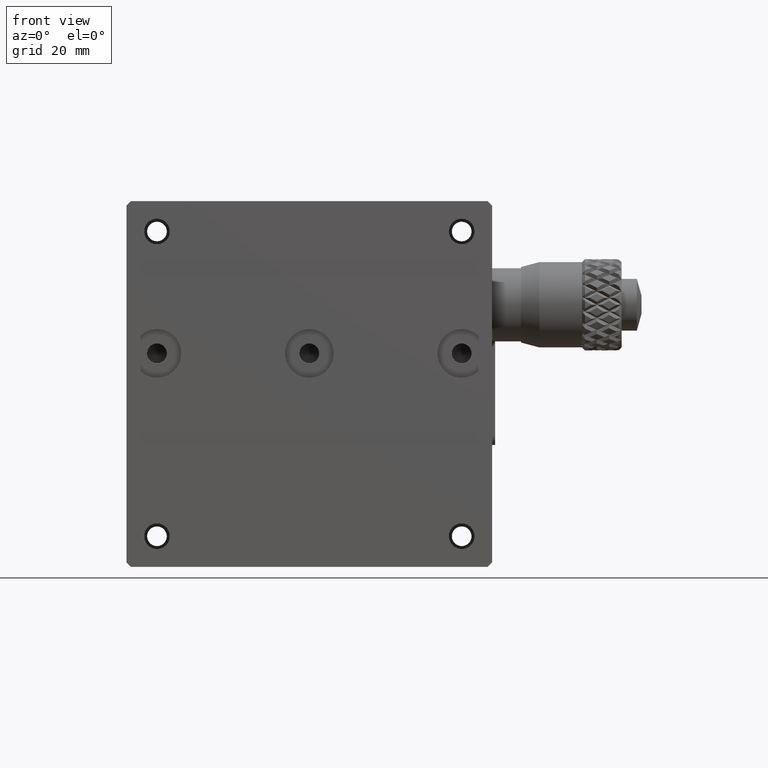
[diagram: clean part render]
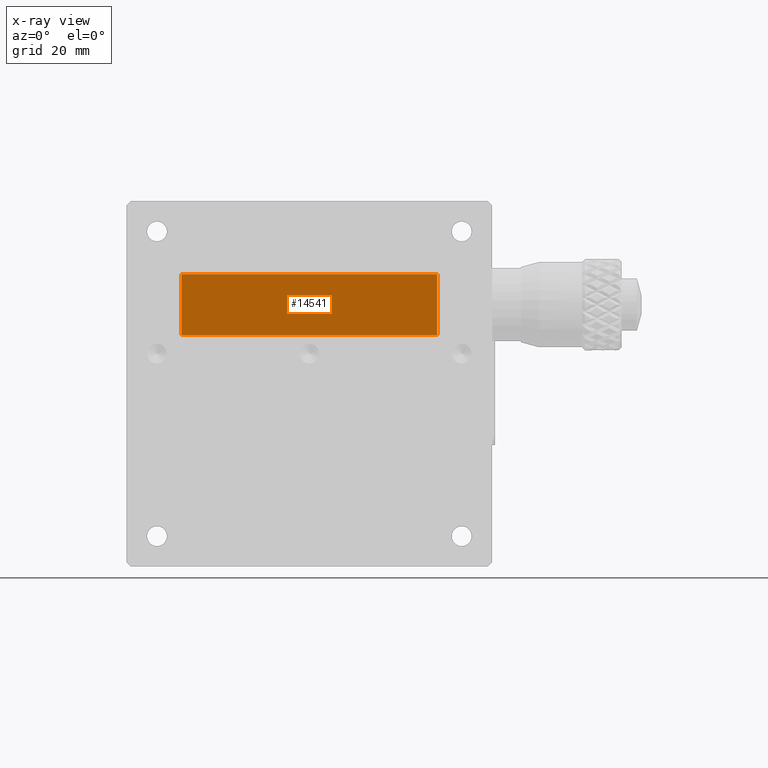
[diagram: x-ray — body ghosted, one internal face saturated and labeled with its STEP entity id]
A machine part, front view, then the same camera in x-ray: the body is ghosted and one INTERNAL B-rep face — a face not visible from any outside direction — is saturated and labeled: STEP entity #14541.
In plain terms, the highlighted planar face has unit normal (0, 1, 0).
Its self-contained STEP definition (entity closure, byte-faithful):
#78 = PLANE ( 'NONE',  #985 ) ;
#985 = AXIS2_PLACEMENT_3D ( 'NONE', #21654, #17269, #15148 ) ;
#1935 = CARTESIAN_POINT ( 'NONE',  ( 51.00000000000000711, 5.999999999999998224, -22.00000000000000000 ) ) ;
#2179 = LINE ( 'NONE', #21783, #18769 ) ;
#2544 = CARTESIAN_POINT ( 'NONE',  ( 9.000000000000001776, 5.999999999999998224, -12.00000000000000000 ) ) ;
#3116 = CARTESIAN_POINT ( 'NONE',  ( 60.00000000000000000, 5.999999999999998224, -12.00000000000000000 ) ) ;
#4653 = EDGE_CURVE ( 'NONE', #24072, #14826, #17260, .T. ) ;
#5780 = VECTOR ( 'NONE', #18219, 1000.000000000000000 ) ;
#8368 = CARTESIAN_POINT ( 'NONE',  ( 51.00000000000000711, 5.999999999999998224, -22.00000000000000000 ) ) ;
#9681 = VERTEX_POINT ( 'NONE', #8368 ) ;
#9717 = ORIENTED_EDGE ( 'NONE', *, *, #4653, .T. ) ;
#10805 = DIRECTION ( 'NONE',  ( -1.000000000000000000, 0.000000000000000000, -8.260587980841940012E-17 ) ) ;
#11165 = VECTOR ( 'NONE', #15140, 1000.000000000000000 ) ;
#12074 = EDGE_CURVE ( 'NONE', #9681, #24072, #2179, .T. ) ;
#14078 = EDGE_CURVE ( 'NONE', #26960, #9681, #14775, .T. ) ;
#14541 = ADVANCED_FACE ( 'NONE', ( #19528 ), #78, .T. ) ;
#14775 = LINE ( 'NONE', #1935, #24381 ) ;
#14826 = VERTEX_POINT ( 'NONE', #2544 ) ;
#15140 = DIRECTION ( 'NONE',  ( 0.000000000000000000, 0.000000000000000000, 1.000000000000000000 ) ) ;
#15148 = DIRECTION ( 'NONE',  ( 0.000000000000000000, -0.000000000000000000, 1.000000000000000000 ) ) ;
#16098 = LINE ( 'NONE', #3116, #5780 ) ;
#17260 = LINE ( 'NONE', #23882, #11165 ) ;
#17269 = DIRECTION ( 'NONE',  ( 0.000000000000000000, 1.000000000000000000, 0.000000000000000000 ) ) ;
#18135 = CARTESIAN_POINT ( 'NONE',  ( 51.00000000000000711, 5.999999999999998224, -12.00000000000000000 ) ) ;
#18219 = DIRECTION ( 'NONE',  ( 1.000000000000000000, 0.000000000000000000, -0.000000000000000000 ) ) ;
#18721 = DIRECTION ( 'NONE',  ( 0.000000000000000000, 0.000000000000000000, -1.000000000000000000 ) ) ;
#18769 = VECTOR ( 'NONE', #10805, 1000.000000000000000 ) ;
#19050 = ORIENTED_EDGE ( 'NONE', *, *, #25254, .T. ) ;
#19528 = FACE_OUTER_BOUND ( 'NONE', #26932, .T. ) ;
#21459 = ORIENTED_EDGE ( 'NONE', *, *, #14078, .T. ) ;
#21654 = CARTESIAN_POINT ( 'NONE',  ( 0.000000000000000000, 6.000000000000000000, 0.000000000000000000 ) ) ;
#21783 = CARTESIAN_POINT ( 'NONE',  ( 9.000000000000001776, 5.999999999999998224, -22.00000000000000000 ) ) ;
#23572 = ORIENTED_EDGE ( 'NONE', *, *, #12074, .T. ) ;
#23882 = CARTESIAN_POINT ( 'NONE',  ( 9.000000000000001776, 5.999999999999998224, -12.00000000000000000 ) ) ;
#24072 = VERTEX_POINT ( 'NONE', #26723 ) ;
#24381 = VECTOR ( 'NONE', #18721, 1000.000000000000000 ) ;
#25254 = EDGE_CURVE ( 'NONE', #14826, #26960, #16098, .T. ) ;
#26723 = CARTESIAN_POINT ( 'NONE',  ( 9.000000000000001776, 5.999999999999998224, -22.00000000000000000 ) ) ;
#26932 = EDGE_LOOP ( 'NONE', ( #21459, #23572, #9717, #19050 ) ) ;
#26960 = VERTEX_POINT ( 'NONE', #18135 ) ;